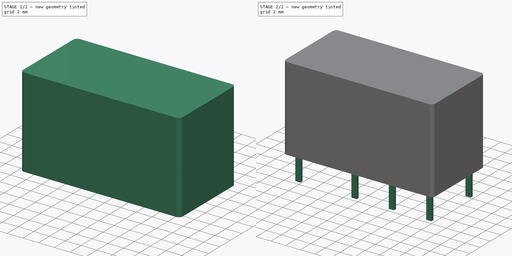
[diagram: build sequence overview — one tinted view per stage of 2, left to right]
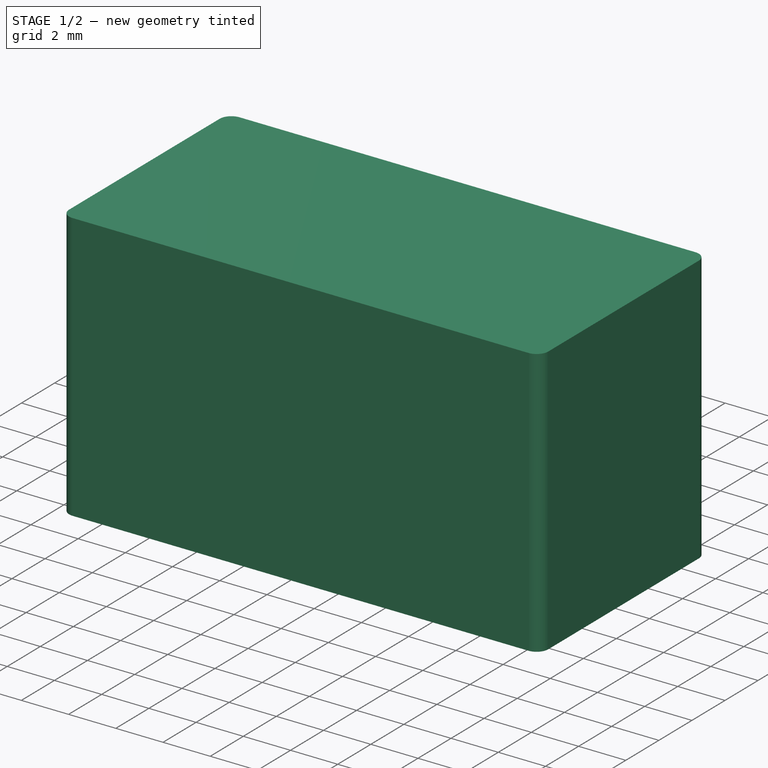
[diagram: stage 1 of 2 — iso view after this stage's code; geometry added in this stage tinted green]
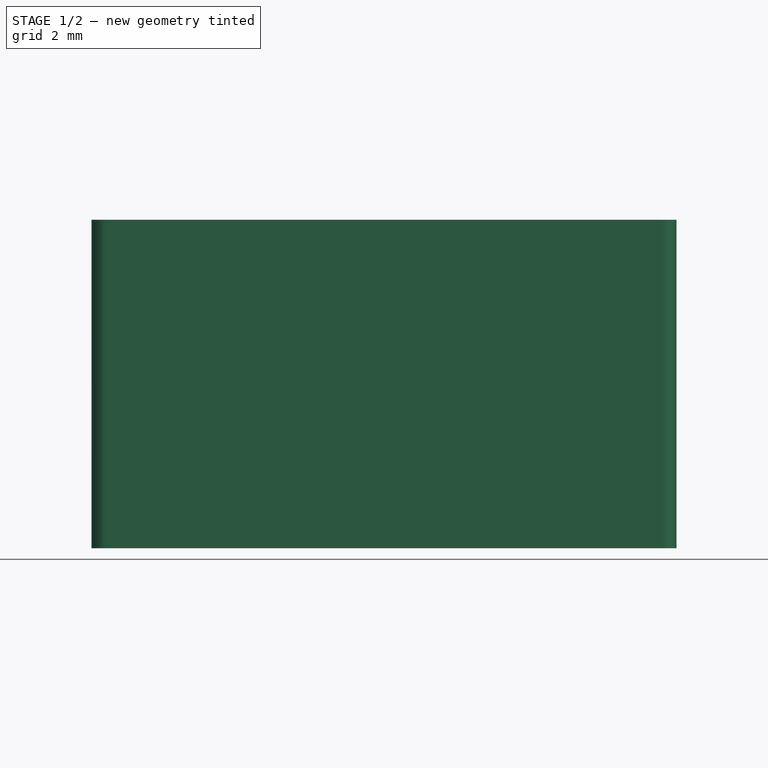
[diagram: stage 1 of 2 — front view after this stage's code; geometry added in this stage tinted green]
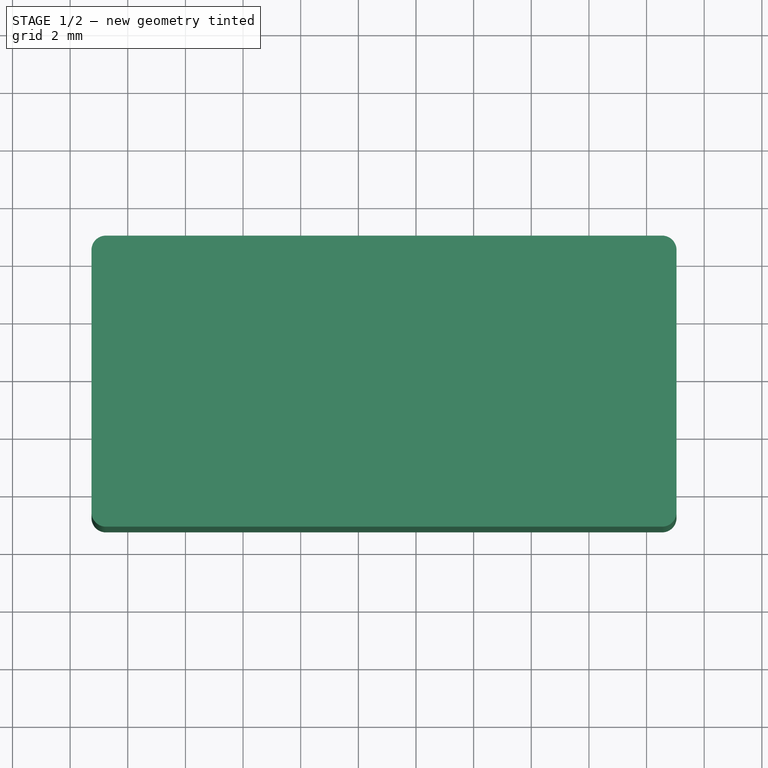
[diagram: stage 1 of 2 — top view after this stage's code; geometry added in this stage tinted green]
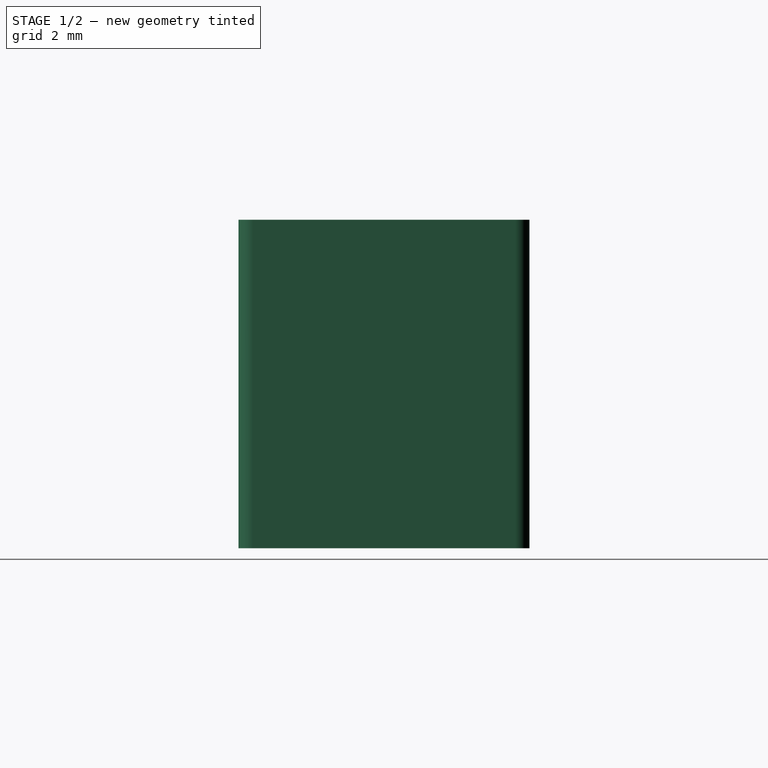
[diagram: stage 1 of 2 — right view after this stage's code; geometry added in this stage tinted green]
FCSTD DOCUMENT  (FreeCAD 0.16R6712 (Git))
Label: Relay_DPDT_Finder_30.22
License: All rights reserved
LicenseURL: http://en.wikipedia.org/wiki/All_rights_reserved
objects: Part::Feature×3, Sketcher::SketchObject×2, PartDesign::Pad×2, App::DocumentObjectGroup×1, PartDesign::Fillet×1, Part::MultiFuse×1
note: 11 computed .brp shape members not serialized (recipe doc carries the construction recipe); baked Part::Feature solids carry a one-line shape summary decoded from their .brp

FEATURE [Part::Feature] FusionAxisZ1  label="Z"
  shape: bbox 0.8 x 0.8 x 14 mm, 8 faces (baked)
FEATURE [Part::Feature] FusionAxisY1  label="Y"
  Placement = pos=(0,0,0.05) rot=(-1,0,0;1.5708rad)
  shape: bbox 0.8 x 14 x 0.8 mm, 8 faces (baked)
FEATURE [Part::Feature] FusionAxisX1  label="X"
  Placement = pos=(0,-0.05,0) rot=(0,1,0;1.5708rad)
  shape: bbox 14 x 0.8 x 0.8 mm, 8 faces (baked)
FEATURE [App::DocumentObjectGroup] axis
  Group = -> [FusionAxisZ1,FusionAxisY1,FusionAxisX1]
FEATURE [Sketcher::SketchObject] Sketch001
  expr: Constraints[11] = (20.3 - 7.62 - 10.16) / 2
  expr: Constraints[8] = (10.1 - 7.62) / 2
  sketch-geometry (4):
    g0: LineSegment StartX=-1.26 StartY=-1.24 StartZ=0 EndX=19.04 EndY=-1.24 EndZ=0
    g1: LineSegment StartX=19.04 StartY=-1.24 StartZ=0 EndX=19.04 EndY=8.86 EndZ=0
    g2: LineSegment StartX=19.04 StartY=8.86 StartZ=0 EndX=-1.26 EndY=8.86 EndZ=0
    g3: LineSegment StartX=-1.26 StartY=8.86 StartZ=0 EndX=-1.26 EndY=-1.24 EndZ=0
  constraints (12):
    c: Coincident(g0,g1)
    c: Coincident(g1,g2)
    c: Coincident(g2,g3)
    c: Coincident(g3,g0)
    c: Horizontal(g0)
    c: Horizontal(g2)
    c: Vertical(g1)
    c: Vertical(g3)
    c: DistanceY(g0,g-1) = 1.24
    c: DistanceY(g3,g3) = 10.1
    c: DistanceX(g2,g2) = 20.3
    c: DistanceX(g0,g-1) = 1.26
FEATURE [PartDesign::Pad] Pad001
  Length = 11.4
  Length2 = 100
  Sketch = -> Sketch001
  Type = 0
FEATURE [PartDesign::Fillet] Fillet
  Base = -> Pad001 [Edge5,Edge2,Edge1,Edge8]
  Radius = 0.5
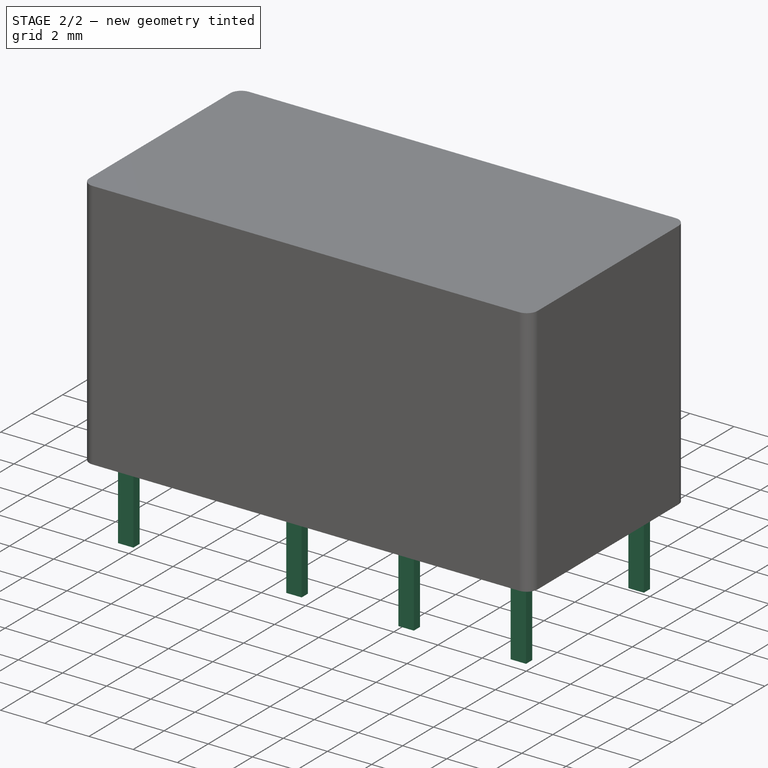
[diagram: stage 2 of 2 — iso view after this stage's code; geometry added in this stage tinted green]
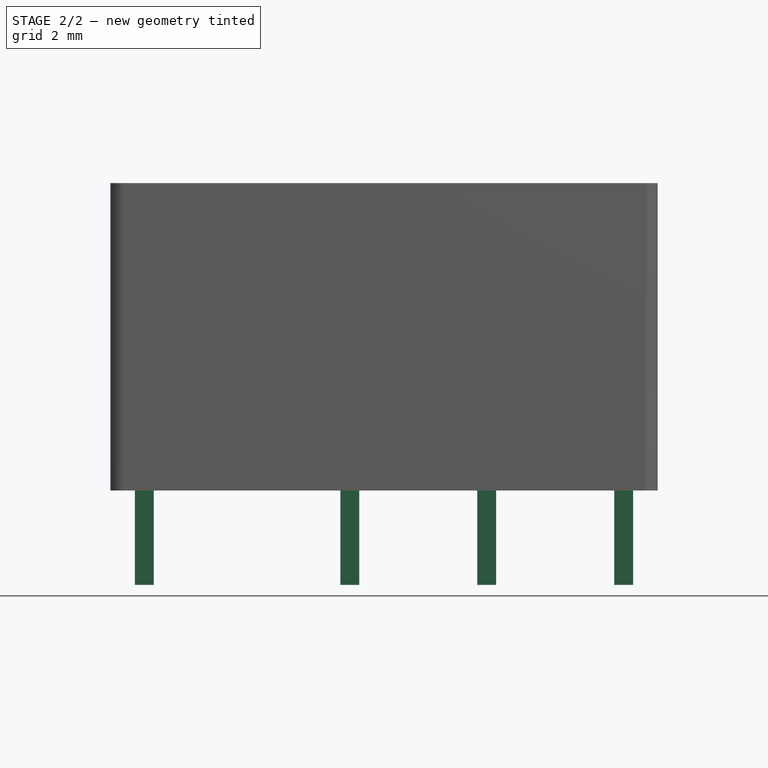
[diagram: stage 2 of 2 — front view after this stage's code; geometry added in this stage tinted green]
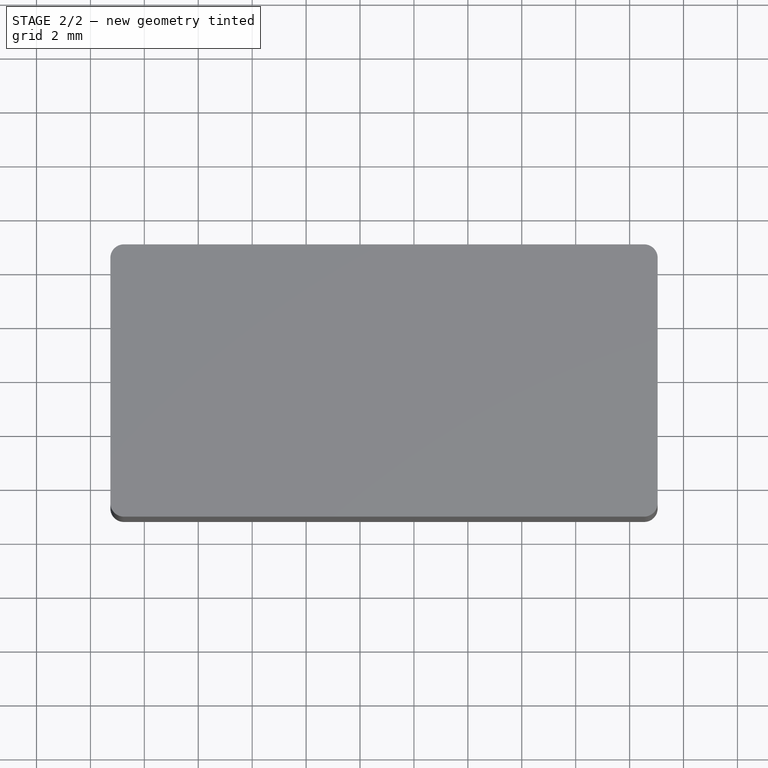
[diagram: stage 2 of 2 — top view after this stage's code; geometry added in this stage tinted green]
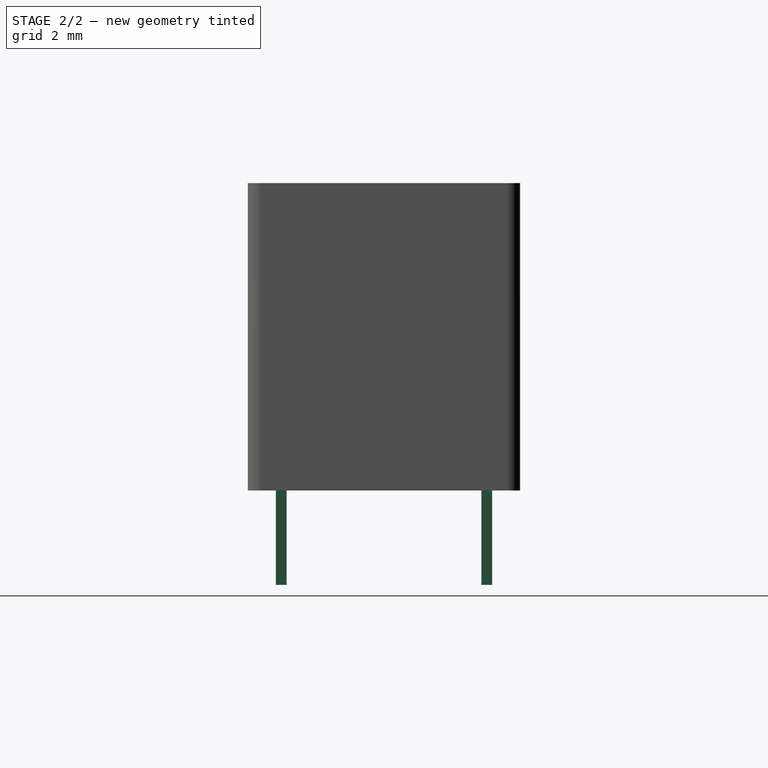
[diagram: stage 2 of 2 — right view after this stage's code; geometry added in this stage tinted green]
FEATURE [Sketcher::SketchObject] Sketch
  Placement = pos=(0,0,0.5) rot=(0,0,1;1.5708rad)
  sketch-geometry (42):
    g0: LineSegment StartX=-0.2 StartY=0.35 StartZ=0 EndX=0.2 EndY=0.35 EndZ=0
    g1: LineSegment StartX=0.2 StartY=0.35 StartZ=0 EndX=0.2 EndY=-0.35 EndZ=0
    g2: LineSegment StartX=0.2 StartY=-0.35 StartZ=0 EndX=-0.2 EndY=-0.35 EndZ=0
    g3: LineSegment StartX=-0.2 StartY=-0.35 StartZ=0 EndX=-0.2 EndY=0.35 EndZ=0
    g4: GeomPoint [constr] X=0 Y=0.35 Z=0
    g5: GeomPoint [constr] X=0.2 Y=0 Z=0
    g6: LineSegment StartX=7.42 StartY=0.35 StartZ=0 EndX=7.82 EndY=0.35 EndZ=0
    g7: LineSegment StartX=7.82 StartY=0.35 StartZ=0 EndX=7.82 EndY=-0.35 EndZ=0
    g8: LineSegment StartX=7.82 StartY=-0.35 StartZ=0 EndX=7.42 EndY=-0.35 EndZ=0
    g9: LineSegment StartX=7.42 StartY=-0.35 StartZ=0 EndX=7.42 EndY=0.35 EndZ=0
    g10: LineSegment StartX=-0.2 StartY=-7.27 StartZ=0 EndX=0.2 EndY=-7.27 EndZ=0
    g11: LineSegment StartX=0.2 StartY=-7.27 StartZ=0 EndX=0.2 EndY=-7.97 EndZ=0
    g12: LineSegment StartX=0.2 StartY=-7.97 StartZ=0 EndX=-0.2 EndY=-7.97 EndZ=0
    g13: LineSegment StartX=-0.2 StartY=-7.97 StartZ=0 EndX=-0.2 EndY=-7.27 EndZ=0
    g14: LineSegment StartX=-0.2 StartY=-12.35 StartZ=0 EndX=0.2 EndY=-12.35 EndZ=0
    g15: LineSegment StartX=0.2 StartY=-12.35 StartZ=0 EndX=0.2 EndY=-13.05 EndZ=0
    g16: LineSegment StartX=0.2 StartY=-13.05 StartZ=0 EndX=-0.2 EndY=-13.05 EndZ=0
    g17: LineSegment StartX=-0.2 StartY=-13.05 StartZ=0 EndX=-0.2 EndY=-12.35 EndZ=0
    g18: LineSegment [constr] StartX=-0.2 StartY=0 StartZ=0 EndX=-0.2 EndY=-7.62 EndZ=0
    g19: LineSegment [constr] StartX=-0.2 StartY=0 StartZ=0 EndX=7.42 EndY=0 EndZ=0
    g20: GeomPoint [constr] X=-0.2 Y=-7.62 Z=0
    g21: LineSegment StartX=7.42 StartY=-12.35 StartZ=0 EndX=7.82 EndY=-12.35 EndZ=0
    g22: LineSegment StartX=7.82 StartY=-12.35 StartZ=0 EndX=7.82 EndY=-13.05 EndZ=0
    g23: LineSegment StartX=7.82 StartY=-13.05 StartZ=0 EndX=7.42 EndY=-13.05 EndZ=0
    g24: LineSegment StartX=7.42 StartY=-13.05 StartZ=0 EndX=7.42 EndY=-12.35 EndZ=0
    g25: LineSegment [constr] StartX=-0.2 StartY=-7.62 StartZ=0 EndX=-0.2 EndY=-12.7 EndZ=0
    g26: LineSegment [constr] StartX=-0.2 StartY=-12.7 StartZ=0 EndX=7.42 EndY=-12.7 EndZ=0
    g27: LineSegment StartX=7.42 StartY=-7.27 StartZ=0 EndX=7.82 EndY=-7.27 EndZ=0
    g28: LineSegment StartX=7.82 StartY=-7.27 StartZ=0 EndX=7.82 EndY=-7.97 EndZ=0
    g29: LineSegment StartX=7.82 StartY=-7.97 StartZ=0 EndX=7.42 EndY=-7.97 EndZ=0
    g30: LineSegment StartX=7.42 StartY=-7.97 StartZ=0 EndX=7.42 EndY=-7.27 EndZ=0
    g31: LineSegment [constr] StartX=-0.2 StartY=-7.62 StartZ=0 EndX=7.42 EndY=-7.62 EndZ=0
    g32: LineSegment StartX=-0.2 StartY=-17.43 StartZ=0 EndX=0.2 EndY=-17.43 EndZ=0
    g33: LineSegment StartX=0.2 StartY=-17.43 StartZ=0 EndX=0.2 EndY=-18.13 EndZ=0
    g34: LineSegment StartX=0.2 StartY=-18.13 StartZ=0 EndX=-0.2 EndY=-18.13 EndZ=0
    g35: LineSegment StartX=-0.2 StartY=-18.13 StartZ=0 EndX=-0.2 EndY=-17.43 EndZ=0
    g36: LineSegment StartX=7.42 StartY=-17.43 StartZ=0 EndX=7.82 EndY=-17.43 EndZ=0
    g37: LineSegment StartX=7.82 StartY=-17.43 StartZ=0 EndX=7.82 EndY=-18.13 EndZ=0
    g38: LineSegment StartX=7.82 StartY=-18.13 StartZ=0 EndX=7.42 EndY=-18.13 EndZ=0
    g39: LineSegment StartX=7.42 StartY=-18.13 StartZ=0 EndX=7.42 EndY=-17.43 EndZ=0
    g40: LineSegment [constr] StartX=-0.2 StartY=-17.78 StartZ=0 EndX=7.42 EndY=-17.78 EndZ=0
    g41: LineSegment [constr] StartX=-0.2 StartY=-17.78 StartZ=0 EndX=-0.2 EndY=-12.7 EndZ=0
  constraints (116):
    c: Coincident(g0,g1)
    c: Coincident(g1,g2)
    c: Coincident(g2,g3)
    c: Coincident(g3,g0)
    c: Horizontal(g0)
    c: Horizontal(g2)
    c: Vertical(g1)
    c: Vertical(g3)
    c: PointOnObject(g4,g0)
    c: PointOnObject(g5,g-1)
    c: Symmetric(g1,g1,g5)
    c: Symmetric(g0,g0,g4)
    c: PointOnObject(g4,g-2)
    c: DistanceY(g3,g3) = 0.7
    c: DistanceX(g0,g0) = 0.4
    c: Coincident(g6,g7)
    c: Coincident(g7,g8)
    c: Coincident(g8,g9)
    c: Coincident(g9,g6)
    c: Horizontal(g6)
    c: Horizontal(g8)
    c: Vertical(g7)
    c: Vertical(g9)
    c: Coincident(g10,g11)
    c: Coincident(g11,g12)
    c: Coincident(g12,g13)
    c: Coincident(g13,g10)
    c: Horizontal(g10)
    c: Horizontal(g12)
    c: Vertical(g11)
    c: Vertical(g13)
    c: Coincident(g14,g15)
    c: Coincident(g15,g16)
    c: Coincident(g16,g17)
    c: Coincident(g17,g14)
    c: Horizontal(g14)
    c: Horizontal(g16)
    c: Vertical(g15)
    c: Vertical(g17)
    c: PointOnObject(g18,g3)
    c: Symmetric(g3,g3,g18)
    c: Coincident(g19,g18)
    c: Horizontal(g19)
    c: Symmetric(g9,g9,g19)
    c: Vertical(g18)
    c: DistanceX(g19,g19) = 7.62
    c: Equal(g6,g0)
    c: Equal(g11,g17)
    c: Symmetric(g13,g13,g20)
    c: Equal(g10,g14)
    c: Equal(g14,g0)
    c: Coincident(g21,g22)
    c: Coincident(g22,g23)
    c: Coincident(g23,g24)
    c: Coincident(g24,g21)
    c: Horizontal(g21)
    c: Horizontal(g23)
    c: Vertical(g22)
    c: Vertical(g24)
    c: Equal(g22,g15)
    c: Equal(g23,g14)
    c: DistanceY(g11,g11) = 0.7
    c: Coincident(g18,g20)
    c: Coincident(g25,g18)
    c: Vertical(g25)
    c: Symmetric(g17,g17,g25)
    c: DistanceY(g25,g25) = 5.08
    c: DistanceY(g18,g18) = 7.62
    c: Horizontal(g26)
    c: Coincident(g25,g26)
    c: DistanceX(g26,g26) = 7.62
    c: Symmetric(g24,g24,g26)
    c: Equal(g7,g1)
    c: Coincident(g27,g28)
    c: Coincident(g28,g29)
    c: Coincident(g29,g30)
    c: Coincident(g30,g27)
    c: Horizontal(g27)
    c: Horizontal(g29)
    c: Vertical(g28)
    c: Vertical(g30)
    c: Horizontal(g31)
    c: Equal(g26,g31) = 7.62
    c: Symmetric(g30,g30,g31)
    c: Coincident(g31,g18)
    c: Equal(g29,g21)
    c: Equal(g28,g22)
    c: Coincident(g32,g33)
    c: Coincident(g33,g34)
    c: Coincident(g34,g35)
    c: Coincident(g35,g32)
    c: Horizontal(g32)
    c: Horizontal(g34)
    c: Vertical(g33)
    c: Vertical(g35)
    c: Coincident(g36,g37)
    c: Coincident(g37,g38)
    c: Coincident(g38,g39)
    c: Coincident(g39,g36)
    c: Horizontal(g36)
    c: Horizontal(g38)
    c: Vertical(g37)
    c: Vertical(g39)
    c: Equal(g37,g33)
    c: Equal(g38,g32)
    c: Horizontal(g40)
    c: Equal(g26,g40) = 7.62
    c: Symmetric(g39,g39,g40)
    c: Coincident(g41,g40)
    c: Coincident(g41,g25)
    c: Vertical(g41)
    c: DistanceY(g41,g41) = 5.08
    c: Equal(g15,g33)
    c: Equal(g32,g16)
    c: PointOnObject(g40,g35)
    c: Symmetric(g35,g35,g40)
FEATURE [PartDesign::Pad] Pad
  Length = 4
  Length2 = 100
  Placement = pos=(0,0,0.5) rot=(0,0,1;1.5708rad)
  Reversed = true
  Sketch = -> Sketch
  Type = 0
FEATURE [Part::MultiFuse] Pad_mp_cp  label="Relay_DPDT_Finder_30.22"
  Shapes = -> [Pad,Fillet]
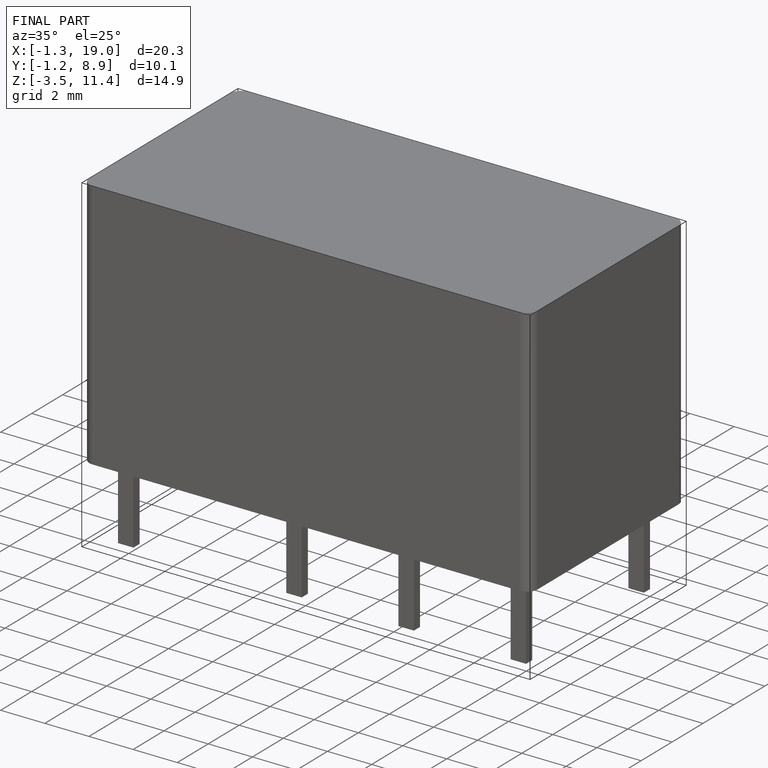
[diagram: finished part — iso view with bounding-box wireframe]
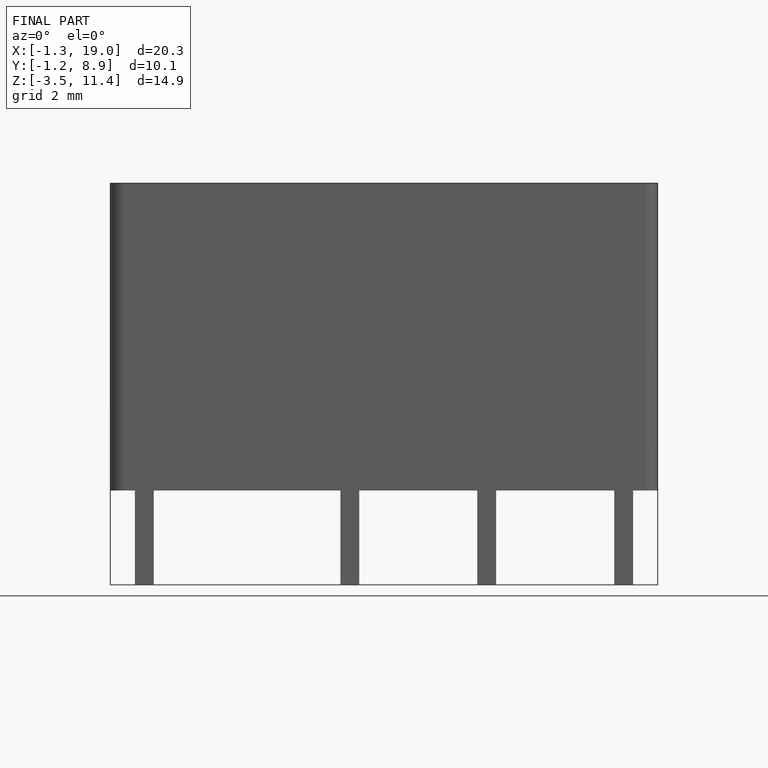
[diagram: finished part — front view with bounding-box wireframe]
